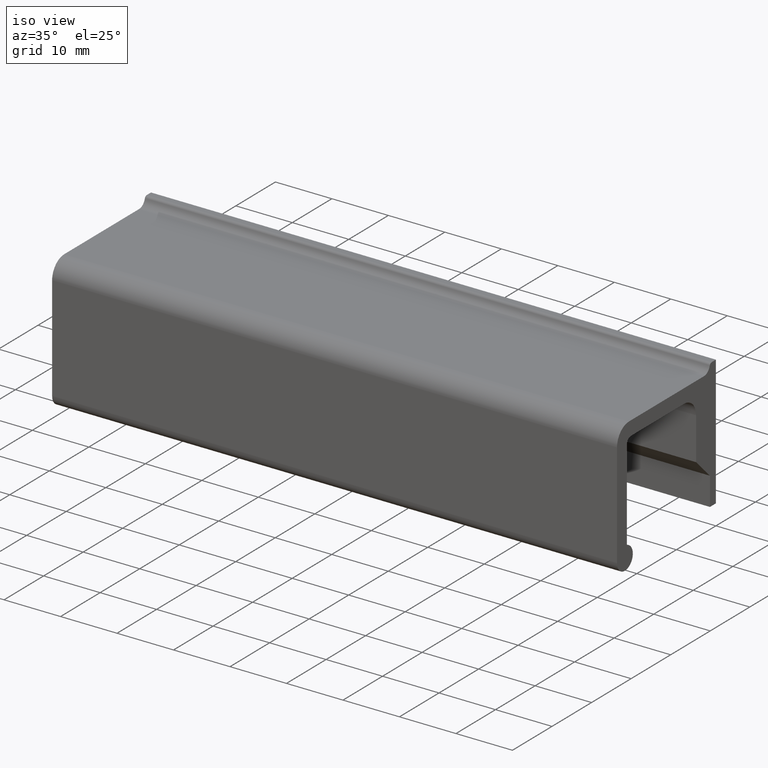
[diagram: clean part render]
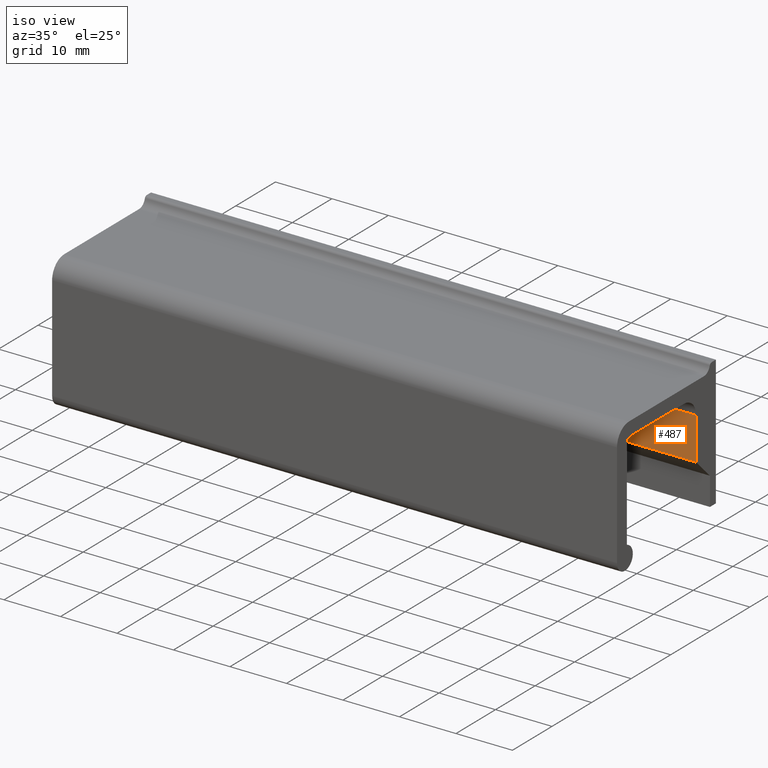
[diagram: same view with one face highlighted and labeled with its STEP entity id]
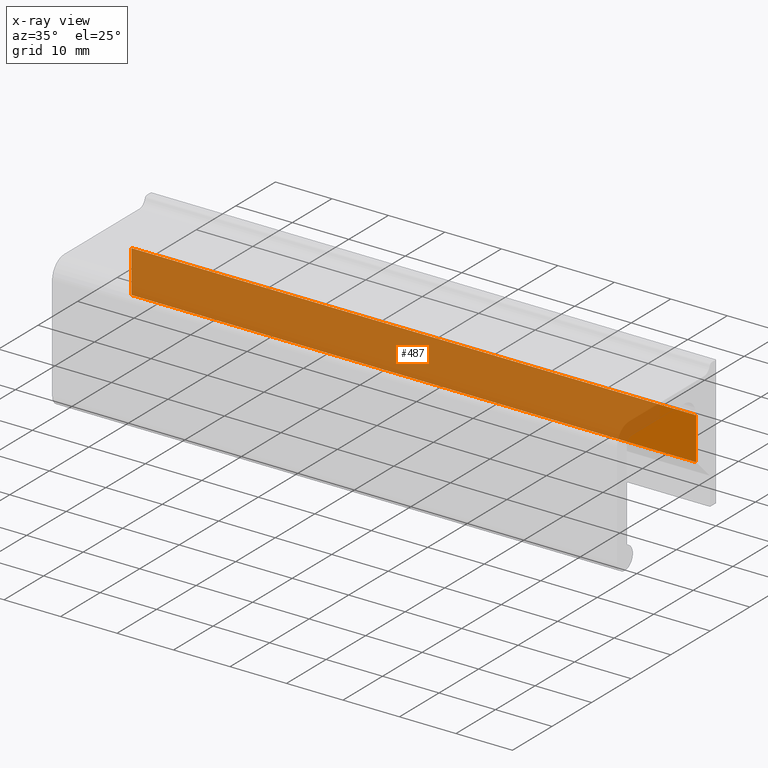
[diagram: x-ray of the same camera — body ghosted, the highlighted face saturated]
A machine part, iso view. The second image highlights one B-rep face of the part: STEP entity #487.
The next image is the same camera in x-ray: the body ghosted, the highlighted face saturated — about 91% of this face is hidden behind the body in this view.
In plain terms, the highlighted face is a freeform B-spline surface patch.
Its self-contained STEP definition (entity closure, byte-faithful):
#94=CARTESIAN_POINT('',(0.0,-5.0,-14.500000000000000));
#95=VERTEX_POINT('',#94);
#101=CARTESIAN_POINT('',(0.0,-5.0,-7.0));
#102=VERTEX_POINT('',#101);
#103=CARTESIAN_POINT('',(0.0,-5.0,-7.0));
#104=CARTESIAN_POINT('',(0.0,-5.0,-14.500000000000000));
#105=QUASI_UNIFORM_CURVE('',1,(#103,#104),.UNSPECIFIED.,.F.,.U.);
#106=EDGE_CURVE('',#102,#95,#105,.T.);
#330=CARTESIAN_POINT('',(100.0,-5.0,-7.0));
#331=VERTEX_POINT('',#330);
#345=CARTESIAN_POINT('',(100.0,-5.0,-14.500000000000000));
#346=VERTEX_POINT('',#345);
#347=CARTESIAN_POINT('',(100.0,-5.0,-7.0));
#348=CARTESIAN_POINT('',(100.0,-5.0,-14.500000000000000));
#349=QUASI_UNIFORM_CURVE('',1,(#347,#348),.UNSPECIFIED.,.F.,.U.);
#350=EDGE_CURVE('',#331,#346,#349,.T.);
#464=CARTESIAN_POINT('',(100.0,-5.0,-14.500000000000000));
#465=CARTESIAN_POINT('',(0.0,-5.0,-14.500000000000000));
#466=QUASI_UNIFORM_CURVE('',1,(#464,#465),.UNSPECIFIED.,.F.,.U.);
#467=EDGE_CURVE('',#346,#95,#466,.T.);
#472=CARTESIAN_POINT('',(-4.994999806180597,-5.0,-14.874624985463550));
#473=CARTESIAN_POINT('',(-4.994999806180597,-5.0,-6.625374813370778));
#474=CARTESIAN_POINT('',(104.995002488389600,-5.0,-14.874624985463550));
#475=CARTESIAN_POINT('',(104.995002488389600,-5.0,-6.625374813370778));
#476=B_SPLINE_SURFACE_WITH_KNOTS('',1,1,((#472,#474),(#473,#475)),.UNSPECIFIED.,.F.,.F.,.U.,(2,2),(2,2),(0.0,8.249250172092769),(0.0,109.990002294570200),.UNSPECIFIED.);
#477=ORIENTED_EDGE('',*,*,#106,.T.);
#478=ORIENTED_EDGE('',*,*,#467,.F.);
#479=ORIENTED_EDGE('',*,*,#350,.F.);
#480=CARTESIAN_POINT('',(100.0,-5.0,-7.0));
#481=CARTESIAN_POINT('',(0.0,-5.0,-7.0));
#482=QUASI_UNIFORM_CURVE('',1,(#480,#481),.UNSPECIFIED.,.F.,.U.);
#483=EDGE_CURVE('',#331,#102,#482,.T.);
#484=ORIENTED_EDGE('',*,*,#483,.T.);
#485=EDGE_LOOP('',(#477,#478,#479,#484));
#486=FACE_OUTER_BOUND('',#485,.T.);
#487=ADVANCED_FACE('',(#486),#476,.F.);